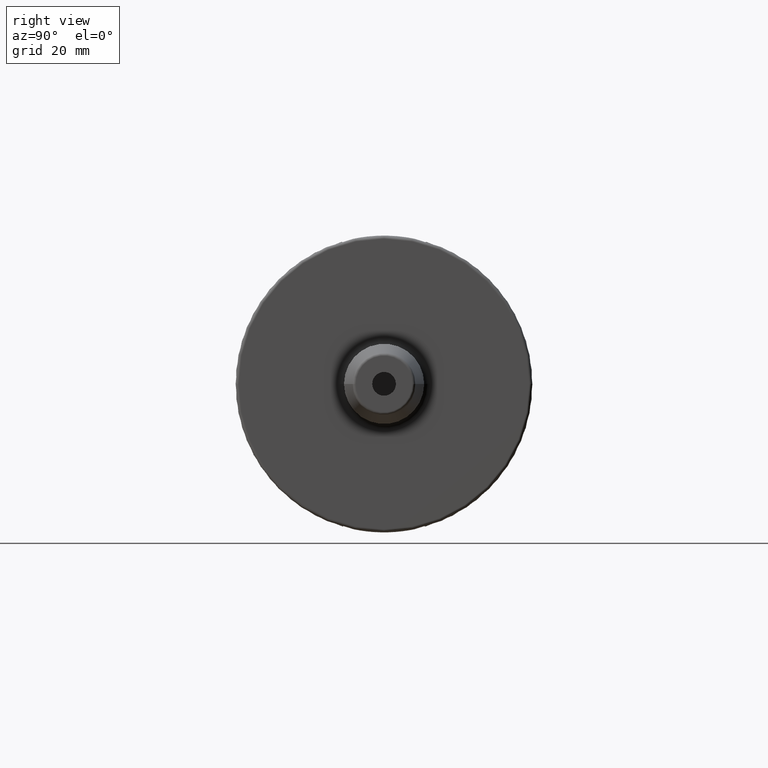
[diagram: clean part render]
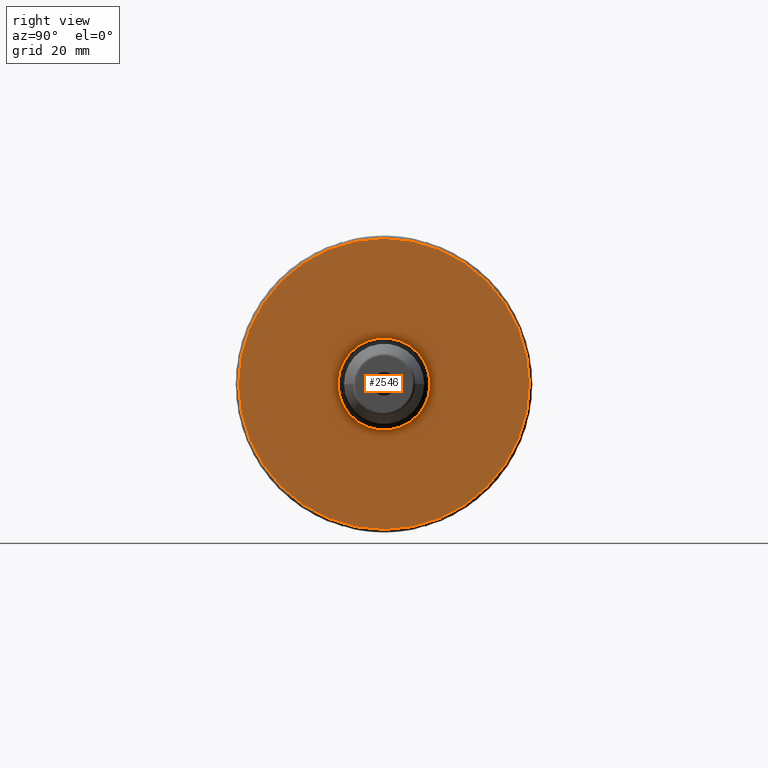
[diagram: same view with one face highlighted and labeled with its STEP entity id]
A machine part, right view. The second image highlights one B-rep face of the part: STEP entity #2546.
In plain terms, the highlighted planar face has unit normal (1, 0, 0).
Its self-contained STEP definition (entity closure, byte-faithful):
#814=CARTESIAN_POINT('',(3.8E1,0.E0,0.E0));
#815=DIRECTION('',(1.E0,0.E0,0.E0));
#816=DIRECTION('',(0.E0,1.E0,0.E0));
#817=AXIS2_PLACEMENT_3D('',#814,#815,#816);
#829=CARTESIAN_POINT('',(3.8E1,0.E0,0.E0));
#830=DIRECTION('',(-1.E0,0.E0,0.E0));
#831=DIRECTION('',(0.E0,1.E0,0.E0));
#832=AXIS2_PLACEMENT_3D('',#829,#830,#831);
#834=CARTESIAN_POINT('',(3.8E1,0.E0,0.E0));
#835=DIRECTION('',(1.E0,0.E0,0.E0));
#836=DIRECTION('',(0.E0,-1.E0,0.E0));
#837=AXIS2_PLACEMENT_3D('',#834,#835,#836);
#839=CARTESIAN_POINT('',(3.8E1,0.E0,0.E0));
#840=DIRECTION('',(1.E0,0.E0,0.E0));
#841=DIRECTION('',(0.E0,1.E0,0.E0));
#842=AXIS2_PLACEMENT_3D('',#839,#840,#841);
#1302=CARTESIAN_POINT('',(3.8E1,4.89875E1,0.E0));
#1303=VERTEX_POINT('',#1302);
#1304=CARTESIAN_POINT('',(3.8E1,-4.89875E1,-1.199847701465E-14));
#1305=VERTEX_POINT('',#1304);
#1403=CARTESIAN_POINT('',(3.8E1,-1.55E1,0.E0));
#1404=CARTESIAN_POINT('',(3.8E1,1.55E1,0.E0));
#1405=VERTEX_POINT('',#1403);
#1406=VERTEX_POINT('',#1404);
#2531=CARTESIAN_POINT('',(3.8E1,0.E0,0.E0));
#2532=DIRECTION('',(1.E0,0.E0,0.E0));
#2533=DIRECTION('',(0.E0,-1.E0,0.E0));
#2534=AXIS2_PLACEMENT_3D('',#2531,#2532,#2533);
#2535=PLANE('',#2534);
#2536=ORIENTED_EDGE('',*,*,#2526,.T.);
#2537=ORIENTED_EDGE('',*,*,#2510,.F.);
#2538=EDGE_LOOP('',(#2536,#2537));
#2539=FACE_OUTER_BOUND('',#2538,.F.);
#2541=ORIENTED_EDGE('',*,*,#2540,.T.);
#2543=ORIENTED_EDGE('',*,*,#2542,.T.);
#2544=EDGE_LOOP('',(#2541,#2543));
#2545=FACE_BOUND('',#2544,.F.);
#2546=ADVANCED_FACE('',(#2539,#2545),#2535,.T.);
#818=CIRCLE('',#817,4.89875E1);
#833=CIRCLE('',#832,4.89875E1);
#838=CIRCLE('',#837,1.55E1);
#843=CIRCLE('',#842,1.55E1);
#2510=EDGE_CURVE('',#1303,#1305,#818,.T.);
#2526=EDGE_CURVE('',#1303,#1305,#833,.T.);
#2540=EDGE_CURVE('',#1405,#1406,#838,.T.);
#2542=EDGE_CURVE('',#1406,#1405,#843,.T.);